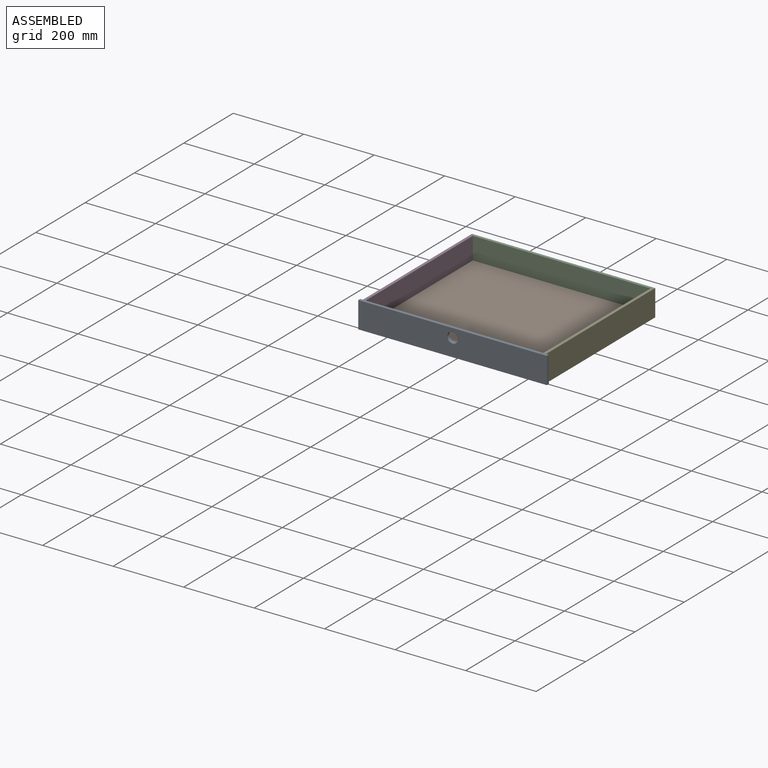
[diagram: assembled view]
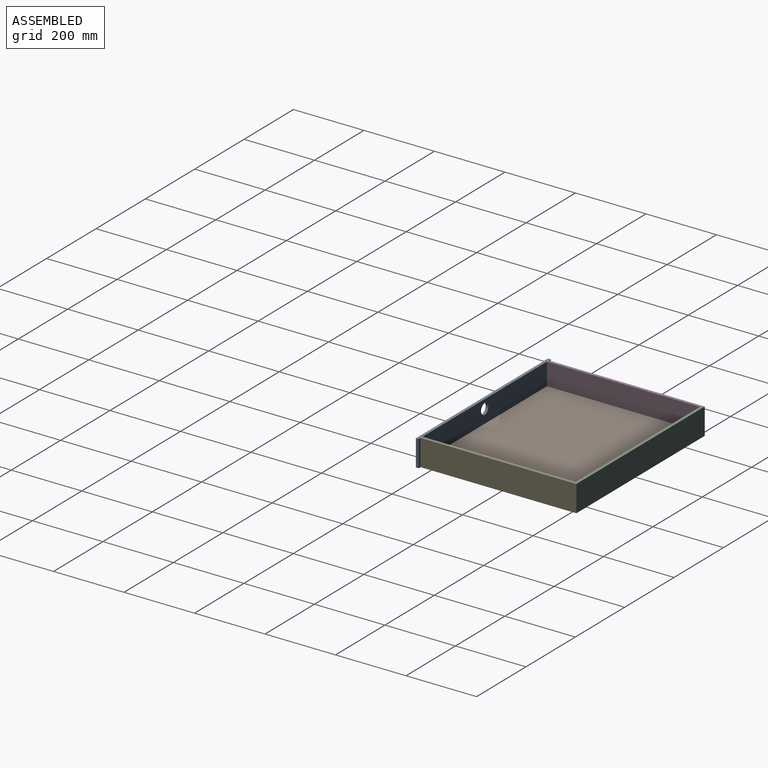
[diagram: assembled view, second angle]
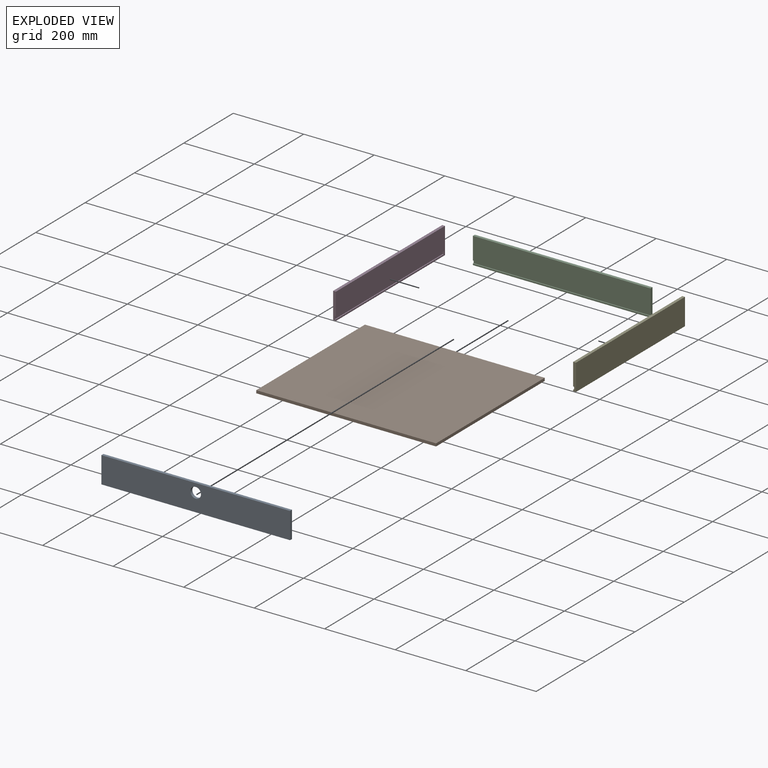
[diagram: exploded view]
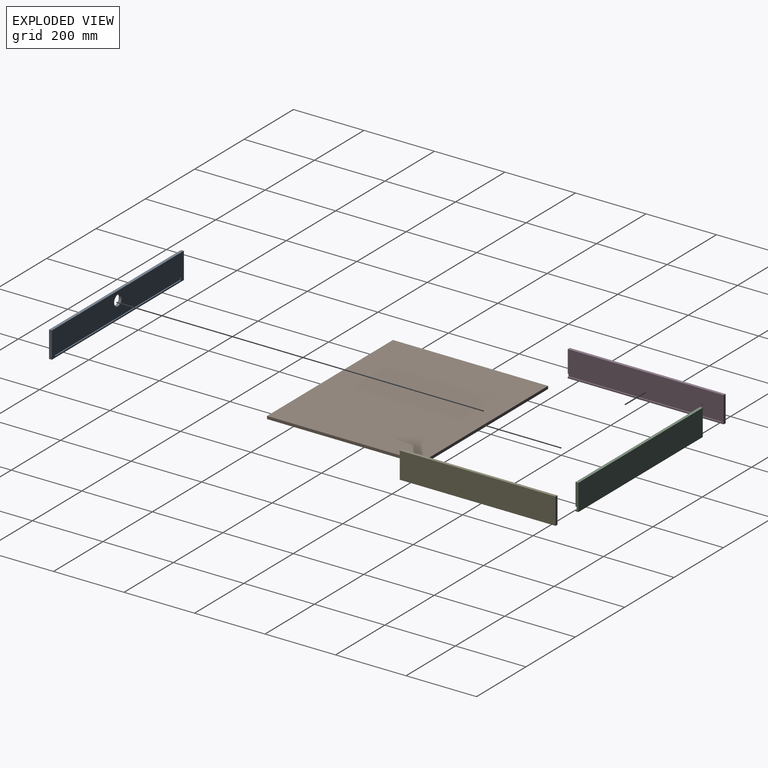
[diagram: exploded view, second angle]
ASSEMBLY  parts=5 mates=4
PART A: 12 faces, bbox 535x8x75 mm
  f0: plane 535x75mm, normal (0,1,0), area 35338.1mm2, adj f1,f3,f4,f5,f7,f8,f9,f10
  f1: plane 75x8mm, normal (-1,0,0), area 600mm2, adj f0,f2,f4,f5
  f2: plane 535x75mm, normal (0,-1,0), area 39418.1mm2, adj f1,f3,f4,f5,f11
  f3: plane 75x8mm, normal (1,0,0), area 600mm2, adj f0,f2,f4,f5
  f4: plane 535x8mm, normal (0,0,1), area 4280mm2, adj f0,f1,f2,f3
  f5: plane 535x8mm, normal (0,0,-1), area 4280mm2, adj f0,f1,f2,f3
  f6: plane 510x8mm, normal (0,1,0), area 4080mm2, adj f7,f8,f9,f10
  f7: plane 8x3mm, normal (-1,0,0), area 24mm2, adj f0,f6,f9,f10
  f8: plane 8x3mm, normal (1,0,0), area 24mm2, adj f0,f6,f9,f10
  f9: plane 510x3mm, normal (0,0,-1), area 1530mm2, adj f0,f6,f7,f8
  f10: plane 510x3mm, normal (0,0,1), area 1530mm2, adj f0,f6,f7,f8
  f11: cylinder r=15mm len=30mm, axis (0,-1,0), area 754mm2, adj f0,f2
PART B: 6 faces, bbox 510x440x8 mm
  f0: plane 510x8mm, normal (0,-1,0), area 4080mm2, adj f1,f3,f4,f5
  f1: plane 440x8mm, normal (1,0,0), area 3520mm2, adj f0,f2,f4,f5
  f2: plane 510x8mm, normal (0,1,0), area 4080mm2, adj f1,f3,f4,f5
  f3: plane 440x8mm, normal (-1,0,0), area 3520mm2, adj f0,f2,f4,f5
  f4: plane 510x440mm, normal (0,0,1), area 224400mm2, adj f0,f1,f2,f3
  f5: plane 510x440mm, normal (0,0,-1), area 224400mm2, adj f0,f1,f2,f3
PART C: 10 faces, bbox 504x8x75 mm
  f0: plane 504x4mm, normal (0,-1,0), area 2016mm2, adj f1,f3,f6,f9
  f1: plane 75x8mm, normal (1,0,0), area 576mm2, adj f0,f2,f4,f5,f6,f7,f8,f9
  f2: plane 504x75mm, normal (0,1,0), area 37800mm2, adj f1,f3,f5,f6
  f3: plane 75x8mm, normal (-1,0,0), area 576mm2, adj f0,f2,f4,f5,f6,f7,f8,f9
  f4: plane 504x63mm, normal (0,-1,0), area 31752mm2, adj f1,f3,f5,f8
  f5: plane 504x8mm, normal (0,0,1), area 4032mm2, adj f1,f2,f3,f4
  f6: plane 504x8mm, normal (0,0,-1), area 4032mm2, adj f0,f1,f2,f3
  f7: plane 504x8mm, normal (0,-1,0), area 4032mm2, adj f1,f3,f8,f9
  f8: plane 504x3mm, normal (0,0,-1), area 1512mm2, adj f1,f3,f4,f7
  f9: plane 504x3mm, normal (0,0,1), area 1512mm2, adj f0,f1,f3,f7
PART D: 10 faces, bbox 8x442x75 mm
  f0: plane 442x75mm, normal (1,0,0), area 29654mm2, adj f1,f3,f4,f5,f7,f8,f9
  f1: plane 75x8mm, normal (0,1,0), area 600mm2, adj f0,f2,f4,f5
  f2: plane 442x75mm, normal (-1,0,0), area 33150mm2, adj f1,f3,f4,f5
  f3: plane 75x8mm, normal (0,-1,0), area 576mm2, adj f0,f2,f4,f5,f6,f8,f9
  f4: plane 442x8mm, normal (0,0,1), area 3536mm2, adj f0,f1,f2,f3
  f5: plane 442x8mm, normal (0,0,-1), area 3536mm2, adj f0,f1,f2,f3
  f6: plane 437x8mm, normal (1,0,0), area 3496mm2, adj f3,f7,f8,f9
  f7: plane 8x3mm, normal (0,-1,0), area 24mm2, adj f0,f6,f8,f9
  f8: plane 437x3mm, normal (0,0,-1), area 1311mm2, adj f0,f3,f6,f7
  f9: plane 437x3mm, normal (0,0,1), area 1311mm2, adj f0,f3,f6,f7
PART E: 10 faces, bbox 8x442x75 mm
  f0: plane 442x75mm, normal (-1,0,0), area 29654mm2, adj f1,f3,f4,f5,f6,f8,f9
  f1: plane 75x8mm, normal (0,-1,0), area 576mm2, adj f0,f2,f4,f5,f7,f8,f9
  f2: plane 442x75mm, normal (1,0,0), area 33150mm2, adj f1,f3,f4,f5
  f3: plane 75x8mm, normal (0,1,0), area 600mm2, adj f0,f2,f4,f5
  f4: plane 442x8mm, normal (0,0,1), area 3536mm2, adj f0,f1,f2,f3
  f5: plane 442x8mm, normal (0,0,-1), area 3536mm2, adj f0,f1,f2,f3
  f6: plane 8x3mm, normal (0,-1,0), area 24mm2, adj f0,f7,f8,f9
  f7: plane 437x8mm, normal (-1,0,0), area 3496mm2, adj f1,f6,f8,f9
  f8: plane 437x3mm, normal (0,0,-1), area 1311mm2, adj f0,f1,f6,f7
  f9: plane 437x3mm, normal (0,0,1), area 1311mm2, adj f0,f1,f6,f7
PLACE A at identity
PLACE B at identity fixed
PLACE C at identity
PLACE D at identity
PLACE E at identity
MATE fastened A.f6 <-> B.f0  axis (0,1,0) through (0,-220,8)mm
MATE fastened E.f7 <-> B.f1  axis (-1,0,0) through (255,1.5,8)mm
MATE fastened D.f6 <-> B.f3  axis (1,0,0) through (-255,1.5,8)mm
MATE fastened C.f7 <-> B.f2  axis (0,-1,0) through (0,220,8)mm
